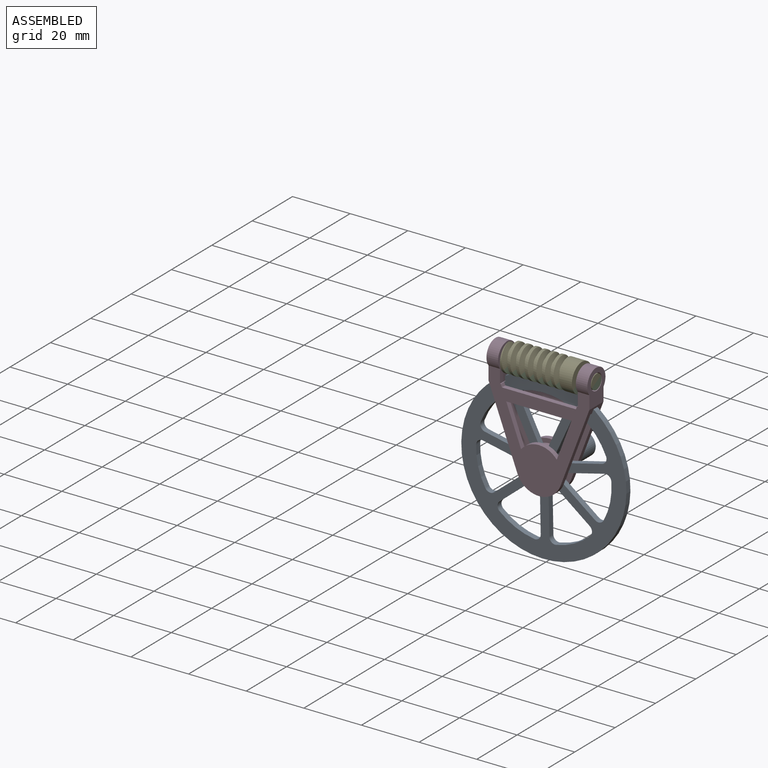
[diagram: assembled view]
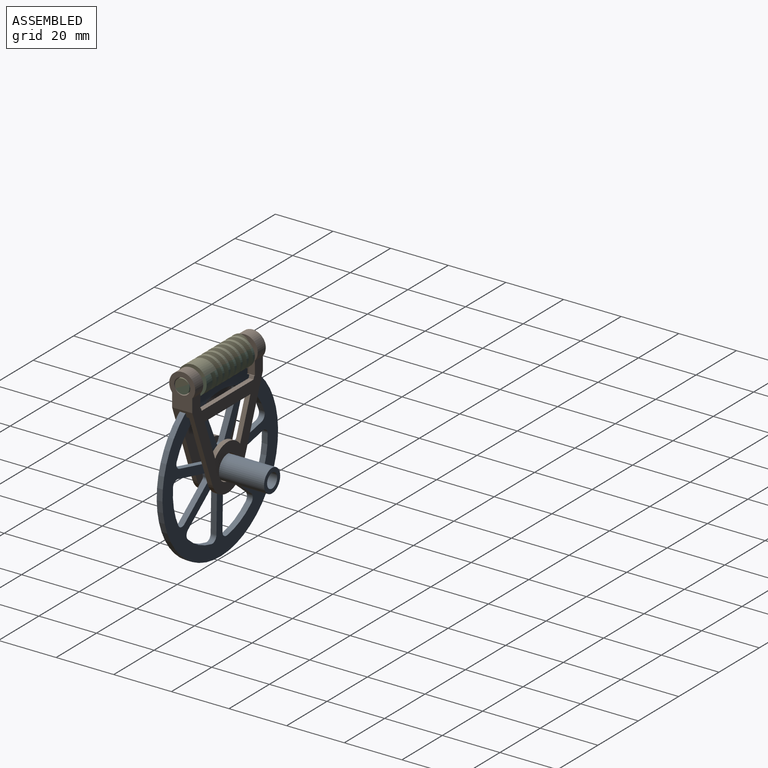
[diagram: assembled view, second angle]
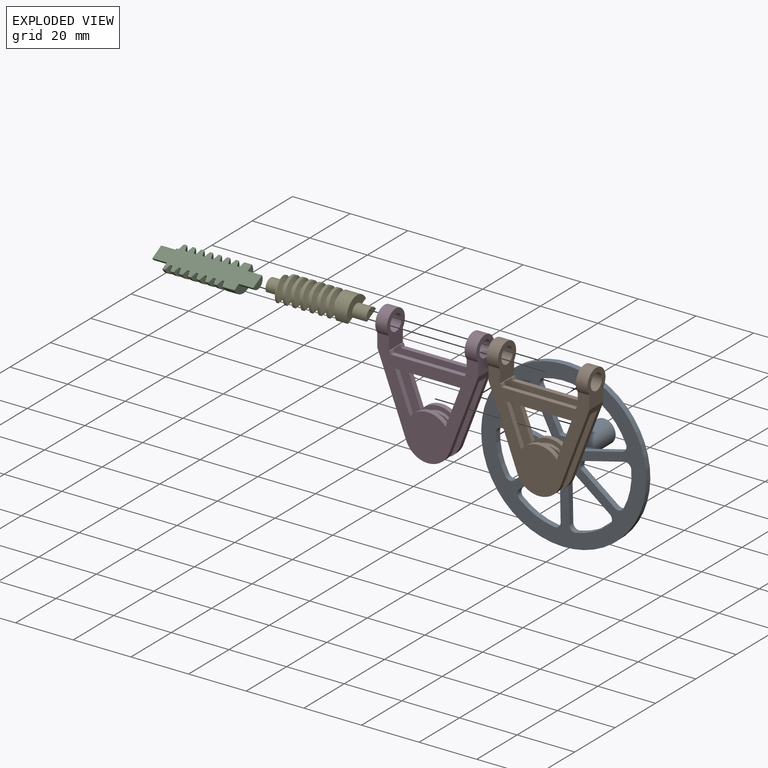
[diagram: exploded view]
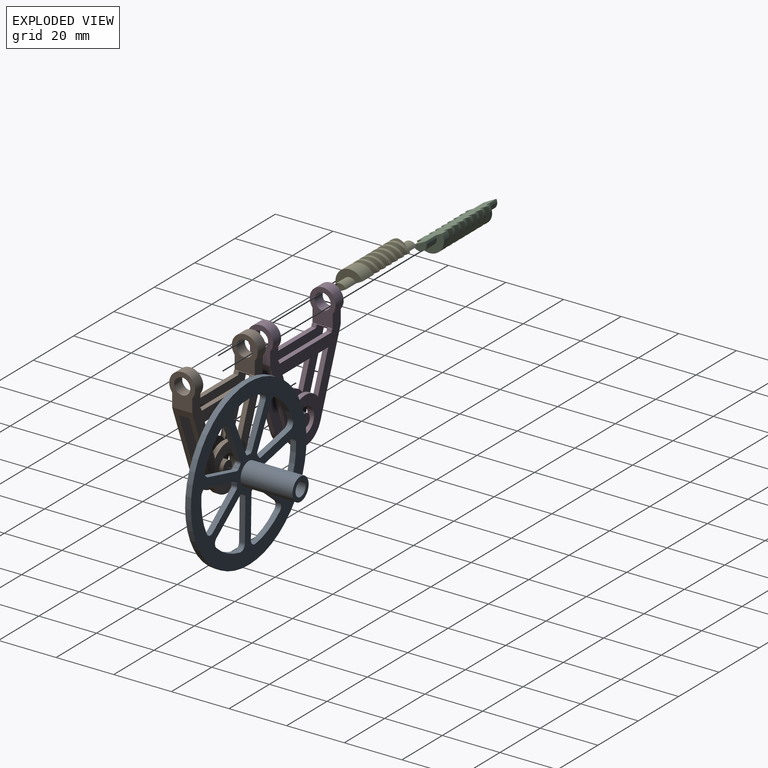
[diagram: exploded view, second angle]
ASSEMBLY  parts=5 mates=4
PART A: 62 faces, bbox 57.3x20x57.3 mm
  f0: plane 57.3x57.3mm, normal (0,1,0), area 1292.1mm2, adj f1,f3,f4,f5,f6,f7,f8,f9
  f1: cylinder r=28.65mm len=57.3mm, axis (0,1,0), area 360mm2, adj f0,f2
  f2: plane 57.3x57.3mm, normal (0,-1,0), area 1322.7mm2, adj f1,f3,f4,f5,f6,f7,f8,f9
  f3: plane 11.47x9.15mm, normal (0.62,0,-0.78), area 29.3mm2, adj f0,f2,f4,f10
  f4: cylinder r=2mm len=2.99mm, axis (0,1,0), area 6.9mm2, adj f0,f2,f3,f5
  f5: cylinder r=23.5mm len=12.9mm, axis (0,1,0), area 26.8mm2, adj f0,f2,f4,f6
  f6: cylinder r=2mm len=2.44mm, axis (0,1,0), area 6.9mm2, adj f0,f2,f5,f7
  f7: plane 14.31x3.27mm, normal (0.22,0,0.97), area 29.3mm2, adj f0,f2,f6,f8
  f8: cylinder r=1mm len=2mm, axis (0,1,0), area 2.4mm2, adj f0,f2,f7,f9
  f9: cylinder r=6mm len=2mm, axis (0,1,0), area 2mm2, adj f0,f2,f8,f10
  f10: cylinder r=1mm len=2mm, axis (0,1,0), area 2.4mm2, adj f0,f2,f3,f9
  f11: plane 11.47x9.15mm, normal (0.62,0,0.78), area 29.3mm2, adj f0,f2,f12,f18
  f12: cylinder r=2mm len=3.05mm, axis (0,1,0), area 6.9mm2, adj f0,f2,f11,f13
  f13: cylinder r=23.5mm len=11.92mm, axis (0,1,0), area 26.8mm2, adj f0,f2,f12,f14
  f14: cylinder r=2mm len=2.33mm, axis (0,1,0), area 6.9mm2, adj f0,f2,f13,f15
  f15: plane 14.68x2mm, normal (-1,0,0), area 29.3mm2, adj f0,f2,f14,f16
  f16: cylinder r=1mm len=2mm, axis (0,1,0), area 2.4mm2, adj f0,f2,f15,f17
  f17: cylinder r=6mm len=2mm, axis (0,1,0), area 2mm2, adj f0,f2,f16,f18
  f18: cylinder r=1mm len=2mm, axis (0,1,0), area 2.4mm2, adj f0,f2,f11,f17
  f19: cylinder r=2mm len=2.33mm, axis (0,1,0), area 6.9mm2, adj f0,f2,f20,f26
  f20: cylinder r=23.5mm len=11.92mm, axis (0,1,0), area 26.8mm2, adj f0,f2,f19,f21
  f21: cylinder r=2mm len=3.05mm, axis (0,1,0), area 6.9mm2, adj f0,f2,f20,f22
  f22: plane 11.47x9.15mm, normal (-0.62,0,0.78), area 29.3mm2, adj f0,f2,f21,f23
  f23: cylinder r=1mm len=2mm, axis (0,1,0), area 2.4mm2, adj f0,f2,f22,f24
  f24: cylinder r=6mm len=2mm, axis (0,1,0), area 2mm2, adj f0,f2,f23,f25
  f25: cylinder r=1mm len=2mm, axis (0,1,0), area 2.4mm2, adj f0,f2,f24,f26
  f26: plane 14.68x2mm, normal (1,0,0), area 29.3mm2, adj f0,f2,f19,f25
  f27: plane 13.22x6.37mm, normal (-0.9,0,-0.43), area 29.3mm2, adj f0,f2,f28,f34
  f28: cylinder r=2mm len=2.79mm, axis (0,1,0), area 6.9mm2, adj f0,f2,f27,f29
  f29: cylinder r=23.5mm len=13.23mm, axis (0,1,0), area 26.8mm2, adj f0,f2,f28,f30
  f30: cylinder r=2mm len=2.79mm, axis (0,1,0), area 6.9mm2, adj f0,f2,f29,f31
  f31: plane 13.22x6.37mm, normal (0.9,0,-0.43), area 29.3mm2, adj f0,f2,f30,f32
  f32: cylinder r=1mm len=2mm, axis (0,1,0), area 2.4mm2, adj f0,f2,f31,f33
  f33: cylinder r=6mm len=2mm, axis (0,1,0), area 2mm2, adj f0,f2,f32,f34
  f34: cylinder r=1mm len=2mm, axis (0,1,0), area 2.4mm2, adj f0,f2,f27,f33
  f35: plane 14.31x3.27mm, normal (-0.22,0,-0.97), area 29.3mm2, adj f0,f2,f36,f42
  f36: cylinder r=2mm len=2.71mm, axis (0,1,0), area 6.9mm2, adj f0,f2,f35,f37
  f37: cylinder r=23.5mm len=10.34mm, axis (0,1,0), area 26.8mm2, adj f0,f2,f36,f38
  f38: cylinder r=2mm len=2.95mm, axis (0,1,0), area 6.9mm2, adj f0,f2,f37,f39
  f39: plane 13.22x6.37mm, normal (0.9,0,0.43), area 29.3mm2, adj f0,f2,f38,f40
  f40: cylinder r=1mm len=2mm, axis (0,1,0), area 2.4mm2, adj f0,f2,f39,f41
  f41: cylinder r=6mm len=2mm, axis (0,1,0), area 2mm2, adj f0,f2,f40,f42
  f42: cylinder r=1mm len=2mm, axis (0,1,0), area 2.4mm2, adj f0,f2,f35,f41
  f43: plane 14.31x3.27mm, normal (-0.22,0,0.97), area 29.3mm2, adj f0,f2,f44,f50
  f44: cylinder r=2mm len=2.44mm, axis (0,1,0), area 6.9mm2, adj f0,f2,f43,f45
  f45: cylinder r=23.5mm len=12.9mm, axis (0,1,0), area 26.8mm2, adj f0,f2,f44,f46
  f46: cylinder r=2mm len=2.99mm, axis (0,1,0), area 6.9mm2, adj f0,f2,f45,f47
  f47: plane 11.47x9.15mm, normal (-0.62,0,-0.78), area 29.3mm2, adj f0,f2,f46,f48
  f48: cylinder r=1mm len=2mm, axis (0,1,0), area 2.4mm2, adj f0,f2,f47,f49
  f49: cylinder r=6mm len=2mm, axis (0,1,0), area 2mm2, adj f0,f2,f48,f50
  f50: cylinder r=1mm len=2mm, axis (0,1,0), area 2.4mm2, adj f0,f2,f43,f49
  f51: plane 13.22x6.37mm, normal (-0.9,0,0.43), area 29.3mm2, adj f0,f2,f52,f58
  f52: cylinder r=2mm len=2.95mm, axis (0,1,0), area 6.9mm2, adj f0,f2,f51,f53
  f53: cylinder r=23.5mm len=10.34mm, axis (0,1,0), area 26.8mm2, adj f0,f2,f52,f54
  f54: cylinder r=2mm len=2.71mm, axis (0,1,0), area 6.9mm2, adj f0,f2,f53,f55
  f55: plane 14.31x3.27mm, normal (0.22,0,-0.97), area 29.3mm2, adj f0,f2,f54,f56
  f56: cylinder r=1mm len=2mm, axis (0,1,0), area 2.4mm2, adj f0,f2,f55,f57
  f57: cylinder r=6mm len=2mm, axis (0,1,0), area 2mm2, adj f0,f2,f56,f58
  f58: cylinder r=1mm len=2mm, axis (0,1,0), area 2.4mm2, adj f0,f2,f51,f57
  f59: cylinder r=2.5mm len=20mm, axis (0,1,0), area 314.2mm2, adj f2,f61
  f60: cylinder r=4mm len=18mm, axis (0,-1,0), area 452.4mm2, adj f0,f61
  f61: plane 8x8mm, normal (0,1,0), area 30.6mm2, adj f59,f60
PART B: 45 faces, bbox 35x9x43.6 mm
  f0: plane 22.66x1.7mm, normal (0,0,-1), area 38.5mm2, adj f1,f5,f20,f33
  f1: plane 13.58x5.14mm, normal (-0.94,0,0.35), area 24.7mm2, adj f0,f8,f20,f33
  f2: plane 1.7x1mm, normal (-0.94,0,0.35), area 1.8mm2, adj f3,f20,f27,f33
  f3: plane 25.69x1.7mm, normal (0,0,1), area 43.7mm2, adj f2,f4,f20,f33
  f4: plane 1.7x1mm, normal (0.94,0,0.35), area 1.8mm2, adj f3,f20,f28,f33
  f5: plane 13.58x5.14mm, normal (0.94,0,0.35), area 24.7mm2, adj f0,f8,f20,f33
  f6: plane 26.48x10.02mm, normal (-0.94,0,-0.35), area 105mm2, adj f9,f10,f15,f20,f21,f25,f30,f33
  f7: plane 26.48x10.02mm, normal (0.94,0,-0.35), area 105mm2, adj f9,f10,f15,f20,f22,f24,f30,f33
  f8: cylinder r=8mm len=12.39mm, axis (0,1,0), area 24.1mm2, adj f1,f5,f20,f33
  f9: cylinder r=8mm len=14.97mm, axis (0,1,0), area 32.9mm2, adj f6,f7,f20,f33
  f10: plane 36.32x35mm, normal (0,-1,0), area 516.3mm2, adj f6,f7,f11,f12,f13,f14,f15,f16
  f11: cylinder r=4.5mm len=9mm, axis (-1,0,0), area 81mm2, adj f10,f20,f25,f29
  f12: plane 22.66x1.7mm, normal (0,0,-1), area 38.5mm2, adj f10,f13,f19,f30
  f13: plane 13.58x5.14mm, normal (-0.94,0,0.35), area 24.7mm2, adj f10,f12,f14,f30
  f14: cylinder r=8mm len=12.39mm, axis (0,1,0), area 24.1mm2, adj f10,f13,f19,f30
  f15: cylinder r=8mm len=14.97mm, axis (0,1,0), area 32.9mm2, adj f6,f7,f10,f30
  f16: plane 1.7x1mm, normal (-0.94,0,0.35), area 1.8mm2, adj f10,f17,f27,f30
  f17: plane 25.69x1.7mm, normal (0,0,1), area 43.7mm2, adj f10,f16,f18,f30
  f18: plane 1.7x1mm, normal (0.94,0,0.35), area 1.8mm2, adj f10,f17,f28,f30
  f19: plane 13.58x5.14mm, normal (0.94,0,0.35), area 24.7mm2, adj f10,f12,f14,f30
  f20: plane 36.32x35mm, normal (0,1,0), area 458.2mm2, adj f0,f1,f2,f3,f4,f5,f6,f7
  f21: cylinder r=27.09mm len=3.6mm, axis (0,1,0), area 14.8mm2, adj f6,f28,f30,f33
  f22: cylinder r=27.09mm len=3.6mm, axis (0,1,0), area 14.8mm2, adj f7,f27,f30,f33
  f23: cylinder r=4.5mm len=9mm, axis (-1,0,0), area 81mm2, adj f10,f20,f24,f26
  f24: plane 12x9mm, normal (1,0,0), area 63.5mm2, adj f7,f10,f20,f23,f32
  f25: plane 12x9mm, normal (-1,0,0), area 63.5mm2, adj f6,f10,f11,f20,f31
  f26: plane 12x9mm, normal (-1,0,0), area 63.5mm2, adj f10,f20,f23,f27,f32
  f27: plane 7x0.28mm, normal (0,0,1), area 1.9mm2, adj f2,f10,f16,f20,f22,f26
  f28: plane 7x0.28mm, normal (0,0,1), area 1.9mm2, adj f4,f10,f18,f20,f21,f29
  f29: plane 12x9mm, normal (1,0,0), area 63.5mm2, adj f10,f11,f20,f28,f31
  f30: plane 33.28x31.65mm, normal (0,1,0), area 419.3mm2, adj f6,f7,f12,f13,f14,f15,f16,f17
  f31: cylinder r=2.8mm len=5.6mm, axis (-1,0,0), area 70.4mm2, adj f25,f29
  f32: cylinder r=2.8mm len=5.6mm, axis (-1,0,0), area 70.4mm2, adj f24,f26
  f33: plane 33.28x31.65mm, normal (0,-1,0), area 336.9mm2, adj f0,f1,f2,f3,f4,f5,f6,f7
  f34: cylinder r=4.3mm len=8.6mm, axis (0,1,0), area 62.5mm2, adj f20,f42
  f35: cylinder r=2.5mm len=5mm, axis (0,1,0), area 8.6mm2, adj f37,f40
  f36: cylinder r=4mm len=8mm, axis (0,1,0), area 1.3mm2, adj f30,f44
  f37: plane 7x7mm, normal (0,1,0), area 18.8mm2, adj f35,f44
  f38: plane 4.4x4.4mm, normal (0,1,0), area 15.2mm2, adj f39
  f39: cylinder r=2.2mm len=5.3mm, axis (0,1,0), area 73.3mm2, adj f38,f40
  f40: plane 5x5mm, normal (0,1,0), area 4.4mm2, adj f35,f39
  f41: cylinder r=6.5mm len=13mm, axis (0,1,0), area 4.7mm2, adj f33,f43
  f42: plane 12x12mm, normal (0,-1,0), area 55mm2, adj f34,f43
  f43: cone r=6mm half-angle=45deg, axis (0,1,0), area 27.8mm2, adj f41,f42
  f44: cone r=4mm half-angle=45deg, axis (0,-1,0), area 16.7mm2, adj f36,f37
PART C: 38 faces, bbox 35x11.1x11 mm
  f0: bspline ~11.11x11mm, area 18.9mm2, adj f1,f4,f34,f37
  f1: cylinder r=3mm len=3mm, axis (-1,0,0), area 1.8mm2, adj f0,f4,f37
  f2: cylinder r=2.5mm len=5mm, axis (-1,0,0), area 39.3mm2, adj f3,f4,f37
  f3: plane 5x2.5mm, normal (-1,0,0), area 9.8mm2, adj f2,f37
  f4: plane 8x3.36mm, normal (-1,0,0), area 11.4mm2, adj f0,f1,f2,f34,f37
  f5: bspline ~11.11x11mm, area 26.4mm2, adj f7,f34,f37
  f6: bspline ~11.11x11mm, area 26.4mm2, adj f7,f33,f37
  f7: cylinder r=3mm len=6mm, axis (-1,0,0), area 7.1mm2, adj f5,f6,f37
  f8: bspline ~11.11x11mm, area 26.4mm2, adj f10,f33,f37
  f9: bspline ~11.11x11mm, area 26.4mm2, adj f10,f32,f37
  f10: cylinder r=3mm len=6mm, axis (-1,0,0), area 7.1mm2, adj f8,f9,f37
  f11: bspline ~11.11x11mm, area 26.4mm2, adj f13,f32,f37
  f12: bspline ~11.11x11mm, area 26.4mm2, adj f13,f31,f37
  f13: cylinder r=3mm len=6mm, axis (-1,0,0), area 7.1mm2, adj f11,f12,f37
  f14: bspline ~11.11x11mm, area 26.4mm2, adj f16,f31,f37
  f15: bspline ~11.11x11mm, area 26.4mm2, adj f16,f30,f37
  f16: cylinder r=3mm len=6mm, axis (-1,0,0), area 7.1mm2, adj f14,f15,f37
  f17: bspline ~11.11x11mm, area 26.4mm2, adj f19,f30,f37
  f18: bspline ~11.11x11mm, area 26.4mm2, adj f19,f29,f37
  f19: cylinder r=3mm len=6mm, axis (-1,0,0), area 7.1mm2, adj f17,f18,f37
  f20: bspline ~11.11x11mm, area 26.4mm2, adj f22,f29,f37
  f21: bspline ~11.11x11mm, area 26.4mm2, adj f22,f28,f37
  f22: cylinder r=3mm len=6mm, axis (-1,0,0), area 7.1mm2, adj f20,f21,f37
  f23: bspline ~11x6.35mm, area 26.4mm2, adj f25,f28,f37
  f24: bspline ~11.11x11mm, area 26.4mm2, adj f25,f27,f37
  f25: cylinder r=3mm len=6mm, axis (-1,0,0), area 7.1mm2, adj f23,f24,f37
  f26: plane 10x5mm, normal (1,0,0), area 29.5mm2, adj f27,f36,f37
  f27: cylinder r=5mm len=10mm, axis (-1,0,0), area 53.4mm2, adj f24,f26,f37
  f28: cylinder r=5mm len=10mm, axis (-1,0,0), area 16.5mm2, adj f21,f23,f37
  f29: cylinder r=5mm len=10mm, axis (-1,0,0), area 16.5mm2, adj f18,f20,f37
  f30: cylinder r=5mm len=10mm, axis (-1,0,0), area 16.5mm2, adj f15,f17,f37
  f31: cylinder r=5mm len=10mm, axis (-1,0,0), area 16.5mm2, adj f12,f14,f37
  f32: cylinder r=5mm len=10mm, axis (-1,0,0), area 16.5mm2, adj f9,f11,f37
  f33: cylinder r=5mm len=10mm, axis (-1,0,0), area 16.5mm2, adj f6,f8,f37
  f34: cylinder r=5mm len=10mm, axis (-1,0,0), area 16.4mm2, adj f0,f4,f5,f37
  f35: plane 5x2.5mm, normal (1,0,0), area 9.8mm2, adj f36,f37
  f36: cylinder r=2.5mm len=5mm, axis (-1,0,0), area 39.3mm2, adj f26,f35,f37
  f37: plane 35x10mm, normal (0,1,0), area 260.1mm2, adj f0,f1,f2,f3,f4,f5,f6,f7
PART D: same geometry as B
PART E: 37 faces, bbox 35x11.1x11 mm
  f0: cylinder r=2.5mm len=5mm, axis (-1,0,0), area 39.3mm2, adj f1,f11,f36
  f1: plane 5x2.5mm, normal (1,0,0), area 9.8mm2, adj f0,f36
  f2: cylinder r=5mm len=10mm, axis (-1,0,0), area 77mm2, adj f11,f26,f35,f36
  f3: cylinder r=5mm len=10mm, axis (-1,0,0), area 16.5mm2, adj f19,f27,f36
  f4: cylinder r=5mm len=10mm, axis (-1,0,0), area 16.5mm2, adj f20,f28,f36
  f5: cylinder r=5mm len=10mm, axis (-1,0,0), area 16.5mm2, adj f21,f29,f36
  f6: cylinder r=5mm len=10mm, axis (-1,0,0), area 16.5mm2, adj f22,f30,f36
  f7: cylinder r=5mm len=10mm, axis (-1,0,0), area 16.5mm2, adj f23,f31,f36
  f8: cylinder r=5mm len=10mm, axis (-1,0,0), area 16.5mm2, adj f24,f32,f36
  f9: cylinder r=5mm len=6.5mm, axis (-1,0,0), area 4.2mm2, adj f10,f25,f36
  f10: plane 8.35x5mm, normal (-1,0,0), area 24mm2, adj f9,f25,f34,f36
  f11: plane 10x5mm, normal (1,0,0), area 29.5mm2, adj f0,f2,f36
  f12: cylinder r=3mm len=6mm, axis (-1,0,0), area 7.1mm2, adj f19,f26,f36
  f13: cylinder r=3mm len=6mm, axis (-1,0,0), area 7.1mm2, adj f20,f27,f36
  f14: cylinder r=3mm len=6mm, axis (-1,0,0), area 7.1mm2, adj f21,f28,f36
  f15: cylinder r=3mm len=6mm, axis (-1,0,0), area 7.1mm2, adj f22,f29,f36
  f16: cylinder r=3mm len=6mm, axis (-1,0,0), area 7.1mm2, adj f23,f30,f36
  f17: cylinder r=3mm len=6mm, axis (-1,0,0), area 7.1mm2, adj f24,f31,f36
  f18: cylinder r=3mm len=6mm, axis (-1,0,0), area 7.1mm2, adj f25,f32,f36
  f19: bspline ~11.11x11mm, area 26.4mm2, adj f3,f12,f36
  f20: bspline ~11.11x11mm, area 26.4mm2, adj f4,f13,f36
  f21: bspline ~11.11x11mm, area 26.4mm2, adj f5,f14,f36
  f22: bspline ~11.11x11mm, area 26.4mm2, adj f6,f15,f36
  f23: bspline ~11.11x11mm, area 26.4mm2, adj f7,f16,f36
  f24: bspline ~11.11x11mm, area 26.4mm2, adj f8,f17,f36
  f25: bspline ~11.11x11mm, area 20.7mm2, adj f9,f10,f18,f36
  f26: bspline ~11.11x11mm, area 26.4mm2, adj f2,f12,f36
  f27: bspline ~11.11x11mm, area 26.4mm2, adj f3,f13,f36
  f28: bspline ~11.11x11mm, area 26.4mm2, adj f4,f14,f36
  f29: bspline ~11.11x11mm, area 26.4mm2, adj f5,f15,f36
  f30: bspline ~11.11x11mm, area 26.4mm2, adj f6,f16,f36
  f31: bspline ~11.11x11mm, area 26.4mm2, adj f7,f17,f36
  f32: bspline ~11.11x11mm, area 26.4mm2, adj f8,f18,f36
  f33: plane 5x2.5mm, normal (-1,0,0), area 9.8mm2, adj f34,f36
  f34: cylinder r=2.5mm len=5mm, axis (-1,0,0), area 39.3mm2, adj f10,f33,f36
  f35: plane 2x1.95mm, normal (0,-1,0), area 2.7mm2, adj f2,f36
  f36: plane 35x10mm, normal (0,-1,0), area 260.1mm2, adj f0,f1,f2,f3,f4,f5,f6,f7
PLACE A rot(axis=(0,1,0),76deg) t=(0,-0.05,0)mm
PLACE B at identity
PLACE C rot(axis=(1,0,0),118.1deg) t=(0,27.48,45.82)mm
PLACE D at identity fixed
PLACE E rot(axis=(1,0,0),118.1deg) t=(0,27.48,45.82)mm
MATE revolute A.f1 <-> B.f8  axis (0,-1,0) through (0,-1.05,0)mm
MATE fastened D.f11 <-> B.f11  axis (-1,0,0) through (17.5,0,31.15)mm
MATE revolute E.f0 <-> D.f11  axis (1,0,0) through (17.5,0,31.15)mm
MATE fastened E.f0 <-> C.f1  axis (1,0,0) through (17.5,0,31.15)mm
